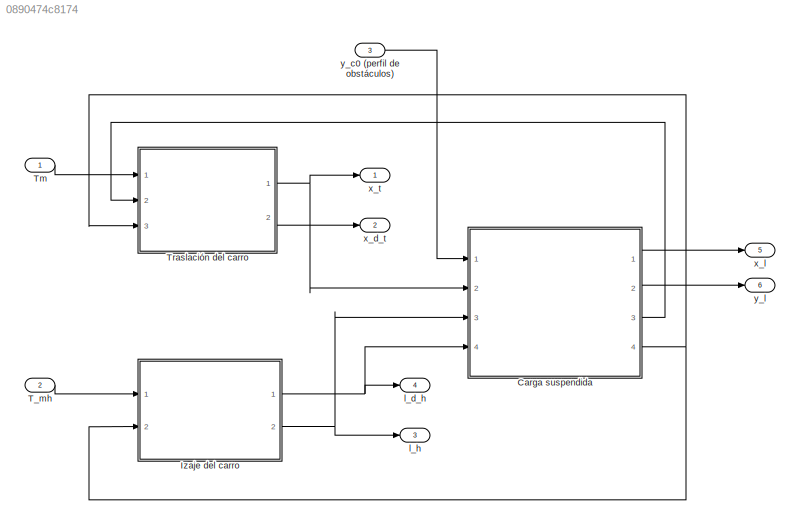
MODEL slx_0890474c8174
KIND model
CONFIG AbsTol = auto
CONFIG EnableMultiTasking = off
CONFIG FixedStep = auto
CONFIG MaxStep = auto
CONFIG MinStep = auto
CONFIG RelTol = 1e-3
CONFIG SampleTimeConstraint = Unconstrained
CONFIG Solver = VariableStepAuto
CONFIG SolverName = VariableStepAuto
CONFIG StartTime = 0.0
CONFIG StopTime = 10.0
BLOCK [ModelReference] Carga suspendida
  ModelNameDialog = carga_suspendida.slx
  ModelReferenceVersion = 1.10
  Ports = [4, 4]
BLOCK [ModelReference] Izaje del carro
  ModelNameDialog = izaje_carro.slx
  ModelReferenceVersion = 1.10
  Ports = [2, 2]
BLOCK [Inport] T_mh
  IconDisplay = Port number
  Port = 2
BLOCK [Inport] Tm
  IconDisplay = Port number
BLOCK [ModelReference] Traslación del carro
  ModelNameDialog = traslacion_carro
  ModelReferenceVersion = 1.11
  Ports = [3, 2]
BLOCK [Outport] l_d_h
  IconDisplay = Port number
  Port = 4
BLOCK [Outport] l_h
  IconDisplay = Port number
  Port = 3
BLOCK [Outport] x_d_t
  IconDisplay = Port number
  Port = 2
BLOCK [Outport] x_l
  IconDisplay = Port number
  Port = 5
BLOCK [Outport] x_t
  IconDisplay = Port number
BLOCK [Inport] y_c0 (perfil de obstáculos)
  IconDisplay = Port number
  Port = 3
BLOCK [Outport] y_l
  IconDisplay = Port number
  Port = 6
LINE Carga suspendida:1 -> x_l:1
LINE Carga suspendida:2 -> y_l:1
LINE Carga suspendida:3 -> Traslación del carro:2
NET Carga suspendida:4 -> Izaje del carro:2, Traslación del carro:3
NET Izaje del carro:1 -> Carga suspendida:4, l_d_h:1
NET Izaje del carro:2 -> Carga suspendida:3, l_h:1
LINE T_mh:1 -> Izaje del carro:1
LINE Tm:1 -> Traslación del carro:1
NET Traslación del carro:1 -> Carga suspendida:2, x_t:1
LINE Traslación del carro:2 -> x_d_t:1
LINE y_c0 (perfil de obstáculos):1 -> Carga suspendida:1
note: NET lines group one-source signal fan-out (src -> all destinations, sorted); 1:1 wires keep LINE
